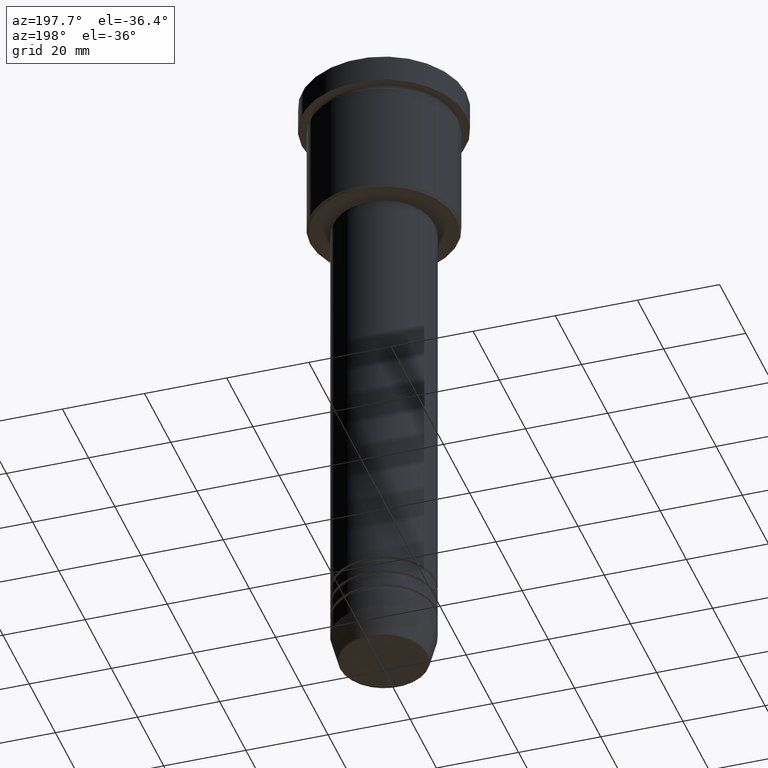
[diagram: clean part render]
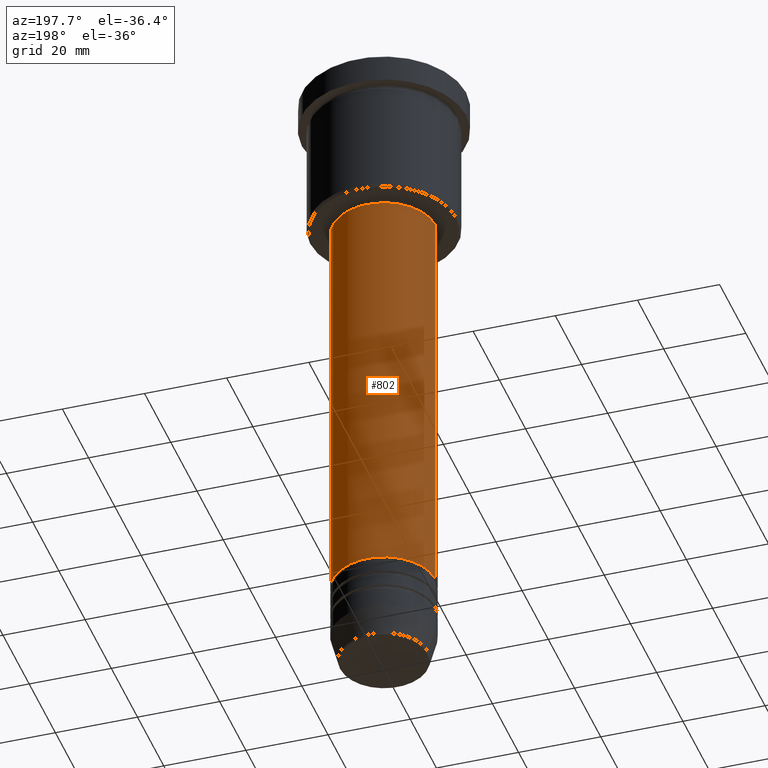
[diagram: same view with one face highlighted and labeled with its STEP entity id]
A machine part, auxiliary view. The second image highlights one B-rep face of the part: STEP entity #802.
In plain terms, the highlighted cylindrical surface (partial cylindrical patch) has radius 12.5 mm, axis along (-0, -0, 1).
Its self-contained STEP definition (entity closure, byte-faithful):
#5 = VECTOR ( 'NONE', #178, 1000.000000000000000 ) ;
#18 = CYLINDRICAL_SURFACE ( 'NONE', #581, 12.50000000000000000 ) ;
#20 = DIRECTION ( 'NONE',  ( 1.000000000000000000, 0.000000000000000000, 0.000000000000000000 ) ) ;
#32 = LINE ( 'NONE', #399, #673 ) ;
#53 = CARTESIAN_POINT ( 'NONE',  ( -12.50000000000000000, 1.530808498934191521E-15, -37.00000000000002842 ) ) ;
#67 = ORIENTED_EDGE ( 'NONE', *, *, #651, .T. ) ;
#72 = DIRECTION ( 'NONE',  ( 1.000000000000000000, 0.000000000000000000, 0.000000000000000000 ) ) ;
#88 = EDGE_CURVE ( 'NONE', #497, #926, #32, .T. ) ;
#126 = DIRECTION ( 'NONE',  ( -0.000000000000000000, -0.000000000000000000, 1.000000000000000000 ) ) ;
#158 = ORIENTED_EDGE ( 'NONE', *, *, #265, .F. ) ;
#159 = VERTEX_POINT ( 'NONE', #53 ) ;
#178 = DIRECTION ( 'NONE',  ( -0.000000000000000000, -0.000000000000000000, 1.000000000000000000 ) ) ;
#184 = CARTESIAN_POINT ( 'NONE',  ( -12.50000000000000000, 1.530808498934191521E-15, 0.000000000000000000 ) ) ;
#265 = EDGE_CURVE ( 'NONE', #926, #159, #766, .T. ) ;
#337 = ORIENTED_EDGE ( 'NONE', *, *, #88, .F. ) ;
#356 = CARTESIAN_POINT ( 'NONE',  ( 12.50000000000000000, 0.000000000000000000, -37.00000000000002842 ) ) ;
#366 = EDGE_CURVE ( 'NONE', #497, #470, #912, .T. ) ;
#387 = CARTESIAN_POINT ( 'NONE',  ( 0.000000000000000000, 0.000000000000000000, 0.000000000000000000 ) ) ;
#399 = CARTESIAN_POINT ( 'NONE',  ( 12.50000000000000000, 0.000000000000000000, 0.000000000000000000 ) ) ;
#470 = VERTEX_POINT ( 'NONE', #961 ) ;
#480 = DIRECTION ( 'NONE',  ( -0.000000000000000000, -0.000000000000000000, 1.000000000000000000 ) ) ;
#497 = VERTEX_POINT ( 'NONE', #1121 ) ;
#575 = DIRECTION ( 'NONE',  ( 1.000000000000000000, 0.000000000000000000, 0.000000000000000000 ) ) ;
#581 = AXIS2_PLACEMENT_3D ( 'NONE', #387, #480, #20 ) ;
#601 = AXIS2_PLACEMENT_3D ( 'NONE', #970, #1074, #72 ) ;
#651 = EDGE_CURVE ( 'NONE', #470, #159, #989, .T. ) ;
#673 = VECTOR ( 'NONE', #1034, 1000.000000000000000 ) ;
#678 = FACE_OUTER_BOUND ( 'NONE', #751, .T. ) ;
#751 = EDGE_LOOP ( 'NONE', ( #869, #67, #158, #337 ) ) ;
#766 = CIRCLE ( 'NONE', #1150, 12.50000000000000000 ) ;
#802 = ADVANCED_FACE ( 'NONE', ( #678 ), #18, .T. ) ;
#869 = ORIENTED_EDGE ( 'NONE', *, *, #366, .T. ) ;
#912 = CIRCLE ( 'NONE', #601, 12.50000000000000000 ) ;
#926 = VERTEX_POINT ( 'NONE', #356 ) ;
#927 = CARTESIAN_POINT ( 'NONE',  ( 0.000000000000000000, 0.000000000000000000, -37.00000000000002842 ) ) ;
#961 = CARTESIAN_POINT ( 'NONE',  ( -12.50000000000000000, 1.530808498934191521E-15, -138.9999999999999716 ) ) ;
#970 = CARTESIAN_POINT ( 'NONE',  ( 0.000000000000000000, 0.000000000000000000, -138.9999999999999716 ) ) ;
#989 = LINE ( 'NONE', #184, #5 ) ;
#1034 = DIRECTION ( 'NONE',  ( -0.000000000000000000, -0.000000000000000000, 1.000000000000000000 ) ) ;
#1074 = DIRECTION ( 'NONE',  ( -0.000000000000000000, -0.000000000000000000, 1.000000000000000000 ) ) ;
#1121 = CARTESIAN_POINT ( 'NONE',  ( 12.50000000000000000, 0.000000000000000000, -138.9999999999999716 ) ) ;
#1150 = AXIS2_PLACEMENT_3D ( 'NONE', #927, #126, #575 ) ;